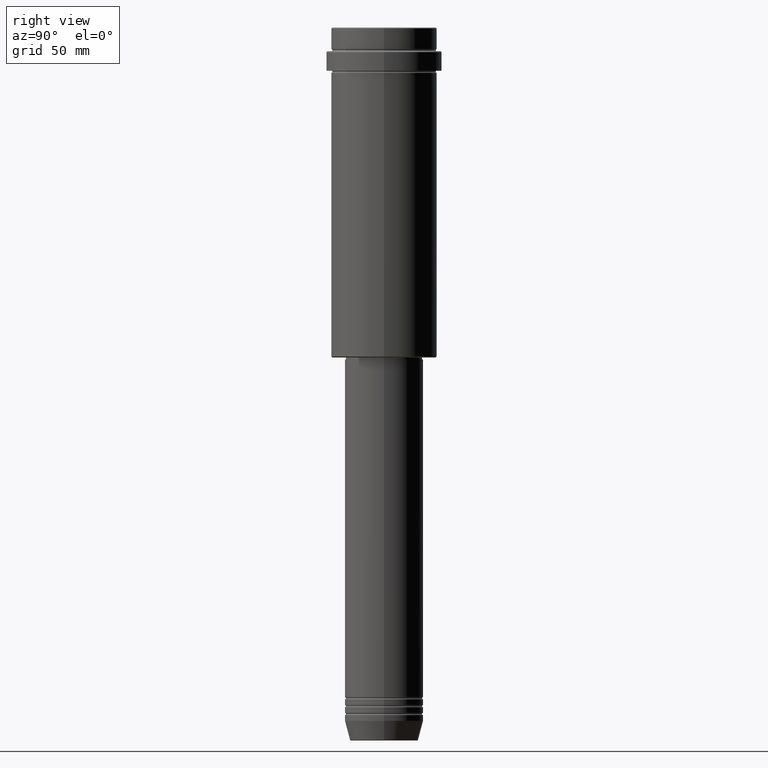
[diagram: clean part render]
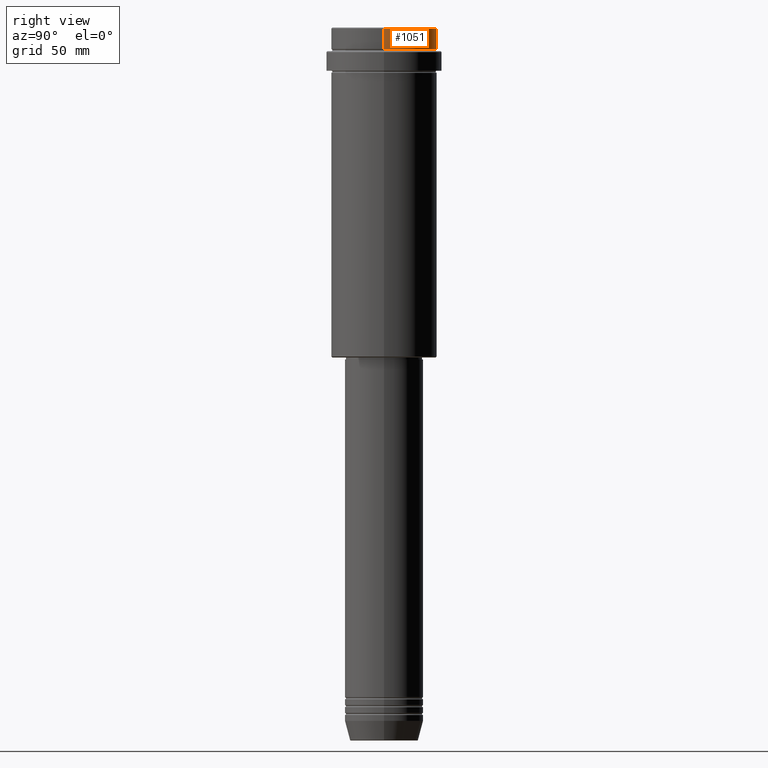
[diagram: same view with one face highlighted and labeled with its STEP entity id]
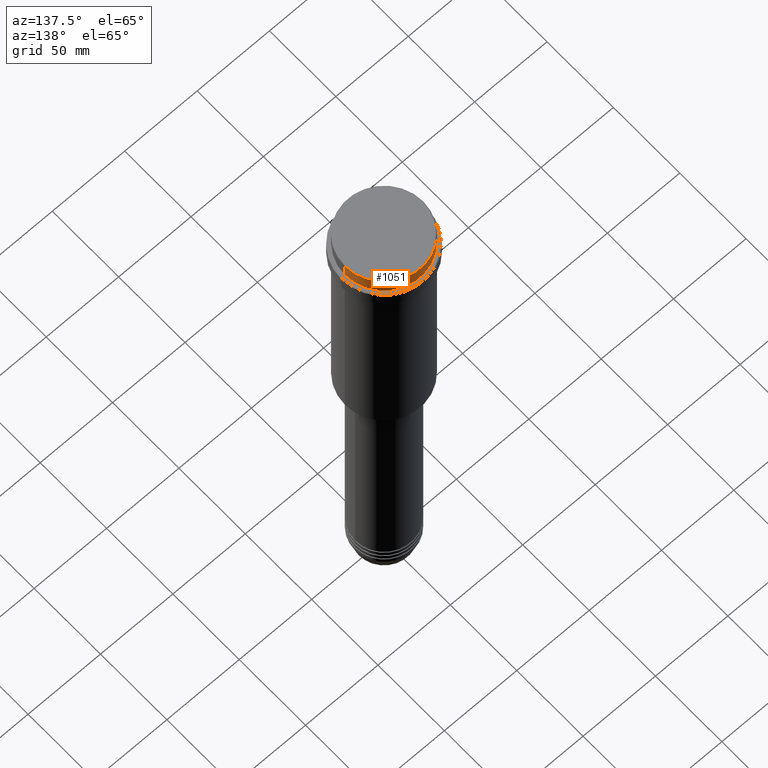
[diagram: same view with one face highlighted and labeled with its STEP entity id]
A machine part, right view. The second image highlights one B-rep face of the part: STEP entity #1051.
A second angle (auxiliary view) of the same face is appended — the face is thin or edge-on in the first view.
In plain terms, the highlighted cylindrical surface (partial cylindrical patch) has radius 27 mm, axis along (-0, -0, 1).
Its self-contained STEP definition (entity closure, byte-faithful):
#60 = LINE ( 'NONE', #612, #1339 ) ;
#72 = AXIS2_PLACEMENT_3D ( 'NONE', #1213, #986, #1329 ) ;
#104 = CARTESIAN_POINT ( 'NONE',  ( 27.00000000000000355, 0.000000000000000000, -0.4999999999999241163 ) ) ;
#132 = EDGE_CURVE ( 'NONE', #204, #274, #60, .T. ) ;
#134 = DIRECTION ( 'NONE',  ( 1.000000000000000000, 0.000000000000000000, 0.000000000000000000 ) ) ;
#163 = DIRECTION ( 'NONE',  ( -0.000000000000000000, -0.000000000000000000, 1.000000000000000000 ) ) ;
#182 = ORIENTED_EDGE ( 'NONE', *, *, #688, .T. ) ;
#193 = VERTEX_POINT ( 'NONE', #278 ) ;
#204 = VERTEX_POINT ( 'NONE', #262 ) ;
#243 = ORIENTED_EDGE ( 'NONE', *, *, #655, .T. ) ;
#262 = CARTESIAN_POINT ( 'NONE',  ( 27.00000000000000355, 0.000000000000000000, -11.00000000000000178 ) ) ;
#266 = DIRECTION ( 'NONE',  ( -0.000000000000000000, -0.000000000000000000, 1.000000000000000000 ) ) ;
#274 = VERTEX_POINT ( 'NONE', #104 ) ;
#278 = CARTESIAN_POINT ( 'NONE',  ( -27.00000000000000355, 3.306546357697854128E-15, -11.00000000000000178 ) ) ;
#369 = ORIENTED_EDGE ( 'NONE', *, *, #132, .F. ) ;
#449 = DIRECTION ( 'NONE',  ( 1.000000000000000000, 0.000000000000000000, 0.000000000000000000 ) ) ;
#476 = CARTESIAN_POINT ( 'NONE',  ( -27.00000000000000355, 3.306546357697854128E-15, -0.4999999999999241163 ) ) ;
#612 = CARTESIAN_POINT ( 'NONE',  ( 27.00000000000000355, 0.000000000000000000, 0.000000000000000000 ) ) ;
#653 = FACE_OUTER_BOUND ( 'NONE', #1250, .T. ) ;
#655 = EDGE_CURVE ( 'NONE', #911, #274, #938, .T. ) ;
#665 = DIRECTION ( 'NONE',  ( -0.000000000000000000, -0.000000000000000000, 1.000000000000000000 ) ) ;
#671 = DIRECTION ( 'NONE',  ( 0.000000000000000000, 0.000000000000000000, -1.000000000000000000 ) ) ;
#688 = EDGE_CURVE ( 'NONE', #193, #911, #988, .T. ) ;
#702 = CARTESIAN_POINT ( 'NONE',  ( 0.000000000000000000, 0.000000000000000000, -11.00000000000000178 ) ) ;
#765 = CARTESIAN_POINT ( 'NONE',  ( 0.000000000000000000, 0.000000000000000000, -0.4999999999999241163 ) ) ;
#773 = CARTESIAN_POINT ( 'NONE',  ( -27.00000000000000355, 3.306546357697854128E-15, 0.000000000000000000 ) ) ;
#858 = AXIS2_PLACEMENT_3D ( 'NONE', #765, #671, #449 ) ;
#911 = VERTEX_POINT ( 'NONE', #476 ) ;
#938 = CIRCLE ( 'NONE', #858, 27.00000000000000355 ) ;
#986 = DIRECTION ( 'NONE',  ( -0.000000000000000000, -0.000000000000000000, 1.000000000000000000 ) ) ;
#988 = LINE ( 'NONE', #773, #1228 ) ;
#1030 = CIRCLE ( 'NONE', #1363, 27.00000000000000355 ) ;
#1051 = ADVANCED_FACE ( 'NONE', ( #653 ), #1088, .T. ) ;
#1088 = CYLINDRICAL_SURFACE ( 'NONE', #72, 27.00000000000000355 ) ;
#1101 = ORIENTED_EDGE ( 'NONE', *, *, #1215, .T. ) ;
#1213 = CARTESIAN_POINT ( 'NONE',  ( 0.000000000000000000, 0.000000000000000000, 0.000000000000000000 ) ) ;
#1215 = EDGE_CURVE ( 'NONE', #204, #193, #1030, .T. ) ;
#1228 = VECTOR ( 'NONE', #665, 1000.000000000000000 ) ;
#1250 = EDGE_LOOP ( 'NONE', ( #1101, #182, #243, #369 ) ) ;
#1329 = DIRECTION ( 'NONE',  ( 1.000000000000000000, 0.000000000000000000, 0.000000000000000000 ) ) ;
#1339 = VECTOR ( 'NONE', #163, 1000.000000000000000 ) ;
#1363 = AXIS2_PLACEMENT_3D ( 'NONE', #702, #266, #134 ) ;